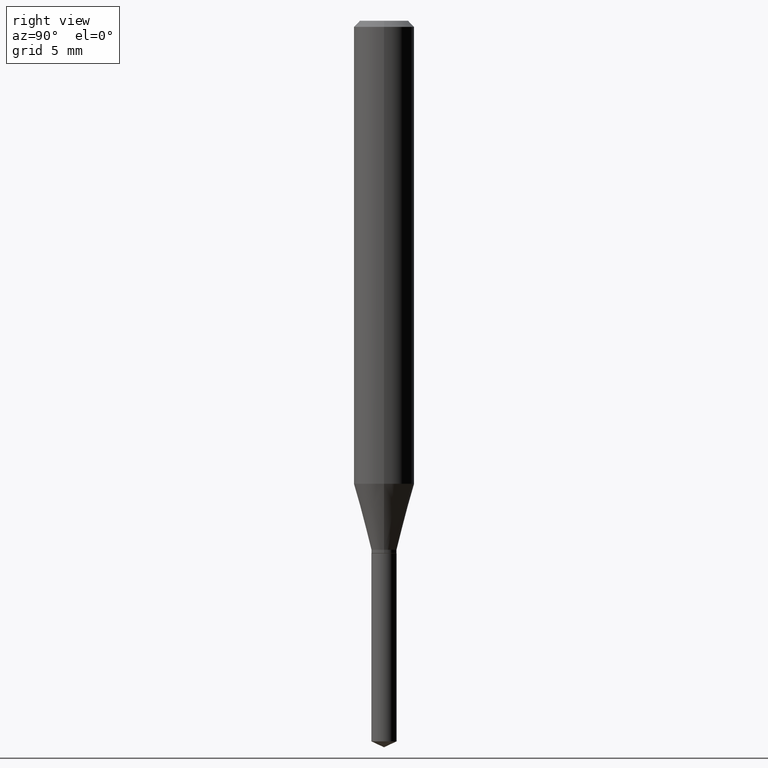
[diagram: clean part render]
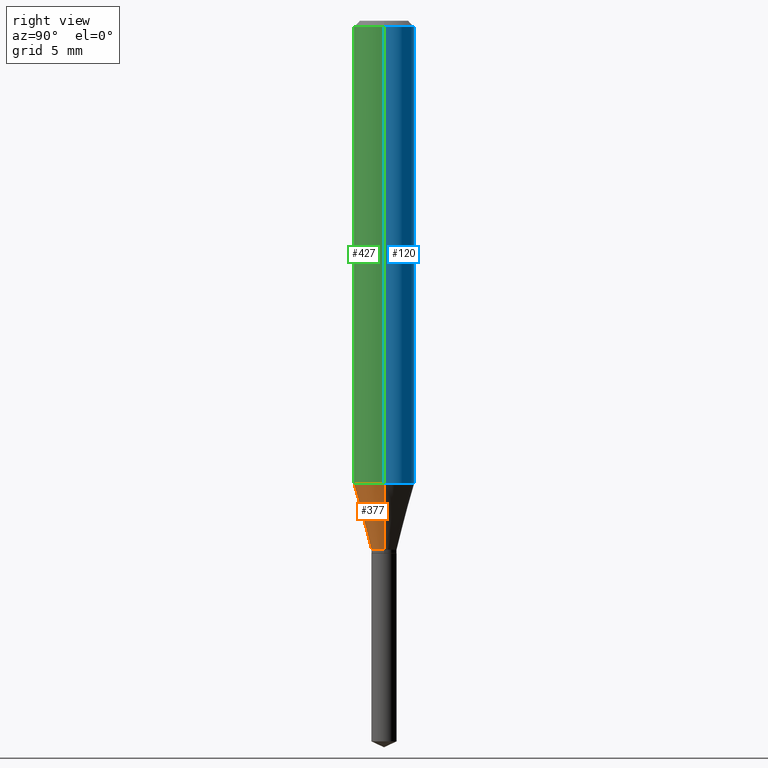
[diagram: same view with three faces highlighted in distinct colors, each labeled with its STEP entity id]
A machine part, right view with three faces highlighted in distinct colors.
Their STEP definitions:

[orange] entity #377 — the highlighted conical surface has half-angle 15 deg.
#5 = CIRCLE ( 'NONE', #464, 0.06250000000000012490 ) ;
#7 = LINE ( 'NONE', #319, #204 ) ;
#16 = VECTOR ( 'NONE', #37, 39.37007874015747433 ) ;
#19 = ORIENTED_EDGE ( 'NONE', *, *, #307, .T. ) ;
#31 = CARTESIAN_POINT ( 'NONE',  ( 2.670941030115406477E-29, -3.813395918284483857E-15, -1.092200000000000060 ) ) ;
#37 = DIRECTION ( 'NONE',  ( 0.2588190451025213501, 1.565188264969621968E-15, 0.9659258262890682012 ) ) ;
#40 = ORIENTED_EDGE ( 'NONE', *, *, #238, .F. ) ;
#77 = DIRECTION ( 'NONE',  ( -0.2588190451025213501, 5.211531920934551042E-15, 0.9659258262890682012 ) ) ;
#84 = EDGE_CURVE ( 'NONE', #331, #439, #7, .T. ) ;
#86 = DIRECTION ( 'NONE',  ( 1.000000000000000000, -6.982962677686258822E-15, 0.000000000000000000 ) ) ;
#90 = CARTESIAN_POINT ( 'NONE',  ( 0.02599999999999999534, -3.994952947904326539E-15, -1.092200000000000060 ) ) ;
#97 = CARTESIAN_POINT ( 'NONE',  ( 0.06250000000000011102, -3.774222005756071563E-15, -0.9559801455237360024 ) ) ;
#128 = DIRECTION ( 'NONE',  ( -2.445468806185136597E-29, 3.491481338843145583E-15, 1.000000000000000000 ) ) ;
#135 = ORIENTED_EDGE ( 'NONE', *, *, #234, .T. ) ;
#166 = VERTEX_POINT ( 'NONE', #90 ) ;
#187 = CARTESIAN_POINT ( 'NONE',  ( 2.337819625210623872E-29, -3.337786838400679105E-15, -0.9559801455237360024 ) ) ;
#204 = VECTOR ( 'NONE', #77, 39.37007874015747433 ) ;
#216 = CARTESIAN_POINT ( 'NONE',  ( -0.06250000000000011102, -2.893697628550616094E-15, -0.9559801455237360024 ) ) ;
#224 = DIRECTION ( 'NONE',  ( 1.000000000000000000, -6.982962677686258822E-15, 0.000000000000000000 ) ) ;
#230 = LINE ( 'NONE', #378, #16 ) ;
#234 = EDGE_CURVE ( 'NONE', #166, #296, #230, .T. ) ;
#238 = EDGE_CURVE ( 'NONE', #439, #296, #5, .T. ) ;
#242 = CARTESIAN_POINT ( 'NONE',  ( -0.02599999999999999534, -3.641398713873635015E-15, -1.092200000000000060 ) ) ;
#254 = DIRECTION ( 'NONE',  ( -2.445468806185136597E-29, 3.491481338843145583E-15, 1.000000000000000000 ) ) ;
#255 = CIRCLE ( 'NONE', #363, 0.02599999999999999534 ) ;
#258 = FACE_OUTER_BOUND ( 'NONE', #336, .T. ) ;
#280 = DIRECTION ( 'NONE',  ( -2.445468806185136597E-29, 3.491481338843145583E-15, 1.000000000000000000 ) ) ;
#296 = VERTEX_POINT ( 'NONE', #97 ) ;
#307 = EDGE_CURVE ( 'NONE', #331, #166, #255, .T. ) ;
#319 = CARTESIAN_POINT ( 'NONE',  ( -0.02599999999999999534, -3.628654806986858433E-15, -1.092200000000000060 ) ) ;
#326 = ORIENTED_EDGE ( 'NONE', *, *, #84, .F. ) ;
#331 = VERTEX_POINT ( 'NONE', #242 ) ;
#336 = EDGE_LOOP ( 'NONE', ( #326, #19, #135, #40 ) ) ;
#340 = AXIS2_PLACEMENT_3D ( 'NONE', #31, #254, #224 ) ;
#345 = CONICAL_SURFACE ( 'NONE', #340, 0.02599999999999999534, 0.2617993877991500740 ) ;
#352 = DIRECTION ( 'NONE',  ( 1.000000000000000000, -6.982962677686264344E-15, 0.000000000000000000 ) ) ;
#363 = AXIS2_PLACEMENT_3D ( 'NONE', #436, #280, #86 ) ;
#377 = ADVANCED_FACE ( 'NONE', ( #258 ), #345, .T. ) ;
#378 = CARTESIAN_POINT ( 'NONE',  ( 0.02599999999999999534, -3.994952947904326539E-15, -1.092200000000000060 ) ) ;
#436 = CARTESIAN_POINT ( 'NONE',  ( 2.670941030115406477E-29, -3.813395918284483857E-15, -1.092200000000000060 ) ) ;
#439 = VERTEX_POINT ( 'NONE', #216 ) ;
#464 = AXIS2_PLACEMENT_3D ( 'NONE', #187, #128, #352 ) ;

[blue] entity #120 — the highlighted cylindrical surface (edge-blend (fillet) strip) has radius 1.5875 mm, axis along (-0, 0, 1).
#15 = EDGE_CURVE ( 'NONE', #222, #401, #244, .T. ) ;
#18 = DIRECTION ( 'NONE',  ( 1.000000000000000000, -6.982962677686266711E-15, 0.000000000000000000 ) ) ;
#44 = CARTESIAN_POINT ( 'NONE',  ( 3.056836007731443167E-31, -4.364351673553963533E-17, -0.01250000000000009090 ) ) ;
#46 = CARTESIAN_POINT ( 'NONE',  ( -0.06250000000000005551, 4.440892098500630106E-16, -3.074334431409318916E-30 ) ) ;
#72 = VECTOR ( 'NONE', #298, 39.37007874015748143 ) ;
#74 = CARTESIAN_POINT ( 'NONE',  ( 0.06250000000000000000, -4.800786840909313294E-16, -0.01250000000000009090 ) ) ;
#79 = DIRECTION ( 'NONE',  ( 1.000000000000000000, -6.982962677686267499E-15, 4.876176775795936353E-29 ) ) ;
#97 = CARTESIAN_POINT ( 'NONE',  ( 0.06250000000000011102, -3.774222005756071563E-15, -0.9559801455237360024 ) ) ;
#120 = ADVANCED_FACE ( 'NONE', ( #309 ), #458, .T. ) ;
#125 = ORIENTED_EDGE ( 'NONE', *, *, #127, .T. ) ;
#127 = EDGE_CURVE ( 'NONE', #296, #439, #348, .T. ) ;
#129 = AXIS2_PLACEMENT_3D ( 'NONE', #311, #420, #79 ) ;
#139 = CARTESIAN_POINT ( 'NONE',  ( 0.06250000000000005551, -4.364351673553921131E-16, 3.047610484872463023E-30 ) ) ;
#152 = EDGE_CURVE ( 'NONE', #439, #401, #462, .T. ) ;
#200 = DIRECTION ( 'NONE',  ( -2.445468806185136877E-29, 3.491481338843145188E-15, 1.000000000000000000 ) ) ;
#216 = CARTESIAN_POINT ( 'NONE',  ( -0.06250000000000011102, -2.893697628550616094E-15, -0.9559801455237360024 ) ) ;
#222 = VERTEX_POINT ( 'NONE', #74 ) ;
#237 = DIRECTION ( 'NONE',  ( 1.000000000000000000, -6.982962677686264344E-15, 0.000000000000000000 ) ) ;
#241 = ORIENTED_EDGE ( 'NONE', *, *, #152, .T. ) ;
#244 = CIRCLE ( 'NONE', #344, 0.06250000000000000000 ) ;
#272 = DIRECTION ( 'NONE',  ( -2.445468806185136597E-29, 3.491481338843145583E-15, 1.000000000000000000 ) ) ;
#296 = VERTEX_POINT ( 'NONE', #97 ) ;
#298 = DIRECTION ( 'NONE',  ( -2.445468806185136877E-29, 3.491481338843145188E-15, 1.000000000000000000 ) ) ;
#309 = FACE_OUTER_BOUND ( 'NONE', #371, .T. ) ;
#311 = CARTESIAN_POINT ( 'NONE',  ( 0.000000000000000000, 0.000000000000000000, 0.000000000000000000 ) ) ;
#317 = VECTOR ( 'NONE', #200, 39.37007874015748143 ) ;
#333 = ORIENTED_EDGE ( 'NONE', *, *, #459, .F. ) ;
#344 = AXIS2_PLACEMENT_3D ( 'NONE', #44, #272, #18 ) ;
#348 = CIRCLE ( 'NONE', #411, 0.06250000000000012490 ) ;
#371 = EDGE_LOOP ( 'NONE', ( #125, #241, #478, #333 ) ) ;
#385 = DIRECTION ( 'NONE',  ( -2.445468806185136597E-29, 3.491481338843145583E-15, 1.000000000000000000 ) ) ;
#401 = VERTEX_POINT ( 'NONE', #479 ) ;
#411 = AXIS2_PLACEMENT_3D ( 'NONE', #423, #385, #237 ) ;
#420 = DIRECTION ( 'NONE',  ( -2.445468806185136597E-29, 3.491481338843145583E-15, 1.000000000000000000 ) ) ;
#423 = CARTESIAN_POINT ( 'NONE',  ( 2.337819625210623872E-29, -3.337786838400679105E-15, -0.9559801455237360024 ) ) ;
#439 = VERTEX_POINT ( 'NONE', #216 ) ;
#458 = CYLINDRICAL_SURFACE ( 'NONE', #129, 0.06250000000000005551 ) ;
#459 = EDGE_CURVE ( 'NONE', #296, #222, #484, .T. ) ;
#462 = LINE ( 'NONE', #46, #317 ) ;
#478 = ORIENTED_EDGE ( 'NONE', *, *, #15, .F. ) ;
#479 = CARTESIAN_POINT ( 'NONE',  ( -0.06250000000000000000, -1.246625967718045534E-15, -0.01250000000000009090 ) ) ;
#484 = LINE ( 'NONE', #139, #72 ) ;

[green] entity #427 — the highlighted cylindrical surface (edge-blend (fillet) strip) has radius 1.5875 mm, axis along (-0, 0, 1).
#5 = CIRCLE ( 'NONE', #464, 0.06250000000000012490 ) ;
#30 = EDGE_LOOP ( 'NONE', ( #130, #370, #260, #66 ) ) ;
#34 = CARTESIAN_POINT ( 'NONE',  ( 0.000000000000000000, 0.000000000000000000, 0.000000000000000000 ) ) ;
#46 = CARTESIAN_POINT ( 'NONE',  ( -0.06250000000000005551, 4.440892098500630106E-16, -3.074334431409318916E-30 ) ) ;
#66 = ORIENTED_EDGE ( 'NONE', *, *, #184, .F. ) ;
#72 = VECTOR ( 'NONE', #298, 39.37007874015748143 ) ;
#74 = CARTESIAN_POINT ( 'NONE',  ( 0.06250000000000000000, -4.800786840909313294E-16, -0.01250000000000009090 ) ) ;
#97 = CARTESIAN_POINT ( 'NONE',  ( 0.06250000000000011102, -3.774222005756071563E-15, -0.9559801455237360024 ) ) ;
#112 = DIRECTION ( 'NONE',  ( -2.445468806185136597E-29, 3.491481338843145583E-15, 1.000000000000000000 ) ) ;
#128 = DIRECTION ( 'NONE',  ( -2.445468806185136597E-29, 3.491481338843145583E-15, 1.000000000000000000 ) ) ;
#130 = ORIENTED_EDGE ( 'NONE', *, *, #152, .F. ) ;
#139 = CARTESIAN_POINT ( 'NONE',  ( 0.06250000000000005551, -4.364351673553921131E-16, 3.047610484872463023E-30 ) ) ;
#152 = EDGE_CURVE ( 'NONE', #439, #401, #462, .T. ) ;
#184 = EDGE_CURVE ( 'NONE', #401, #222, #447, .T. ) ;
#187 = CARTESIAN_POINT ( 'NONE',  ( 2.337819625210623872E-29, -3.337786838400679105E-15, -0.9559801455237360024 ) ) ;
#200 = DIRECTION ( 'NONE',  ( -2.445468806185136877E-29, 3.491481338843145188E-15, 1.000000000000000000 ) ) ;
#216 = CARTESIAN_POINT ( 'NONE',  ( -0.06250000000000011102, -2.893697628550616094E-15, -0.9559801455237360024 ) ) ;
#221 = DIRECTION ( 'NONE',  ( 1.000000000000000000, -6.982962677686267499E-15, 4.876176775795936353E-29 ) ) ;
#222 = VERTEX_POINT ( 'NONE', #74 ) ;
#236 = AXIS2_PLACEMENT_3D ( 'NONE', #34, #112, #221 ) ;
#238 = EDGE_CURVE ( 'NONE', #439, #296, #5, .T. ) ;
#260 = ORIENTED_EDGE ( 'NONE', *, *, #459, .T. ) ;
#267 = AXIS2_PLACEMENT_3D ( 'NONE', #397, #392, #474 ) ;
#296 = VERTEX_POINT ( 'NONE', #97 ) ;
#298 = DIRECTION ( 'NONE',  ( -2.445468806185136877E-29, 3.491481338843145188E-15, 1.000000000000000000 ) ) ;
#302 = FACE_OUTER_BOUND ( 'NONE', #30, .T. ) ;
#317 = VECTOR ( 'NONE', #200, 39.37007874015748143 ) ;
#352 = DIRECTION ( 'NONE',  ( 1.000000000000000000, -6.982962677686264344E-15, 0.000000000000000000 ) ) ;
#370 = ORIENTED_EDGE ( 'NONE', *, *, #238, .T. ) ;
#392 = DIRECTION ( 'NONE',  ( -2.445468806185136597E-29, 3.491481338843145583E-15, 1.000000000000000000 ) ) ;
#397 = CARTESIAN_POINT ( 'NONE',  ( 3.056836007731443167E-31, -4.364351673553963533E-17, -0.01250000000000009090 ) ) ;
#401 = VERTEX_POINT ( 'NONE', #479 ) ;
#427 = ADVANCED_FACE ( 'NONE', ( #302 ), #449, .T. ) ;
#439 = VERTEX_POINT ( 'NONE', #216 ) ;
#447 = CIRCLE ( 'NONE', #267, 0.06250000000000000000 ) ;
#449 = CYLINDRICAL_SURFACE ( 'NONE', #236, 0.06250000000000005551 ) ;
#459 = EDGE_CURVE ( 'NONE', #296, #222, #484, .T. ) ;
#462 = LINE ( 'NONE', #46, #317 ) ;
#464 = AXIS2_PLACEMENT_3D ( 'NONE', #187, #128, #352 ) ;
#474 = DIRECTION ( 'NONE',  ( 1.000000000000000000, -6.982962677686266711E-15, 0.000000000000000000 ) ) ;
#479 = CARTESIAN_POINT ( 'NONE',  ( -0.06250000000000000000, -1.246625967718045534E-15, -0.01250000000000009090 ) ) ;
#484 = LINE ( 'NONE', #139, #72 ) ;